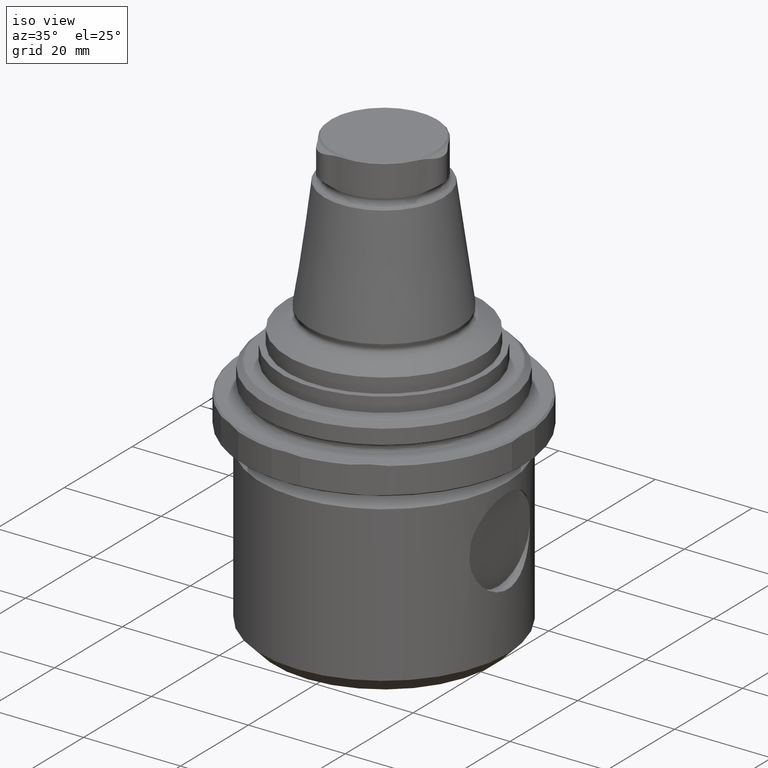
[diagram: clean part render]
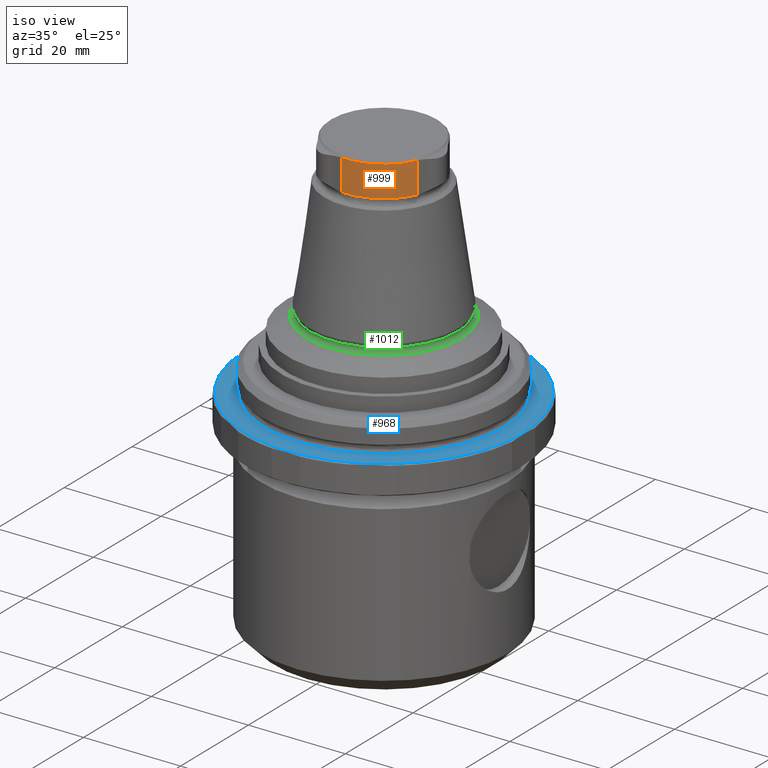
[diagram: same view with three faces highlighted in distinct colors, each labeled with its STEP entity id]
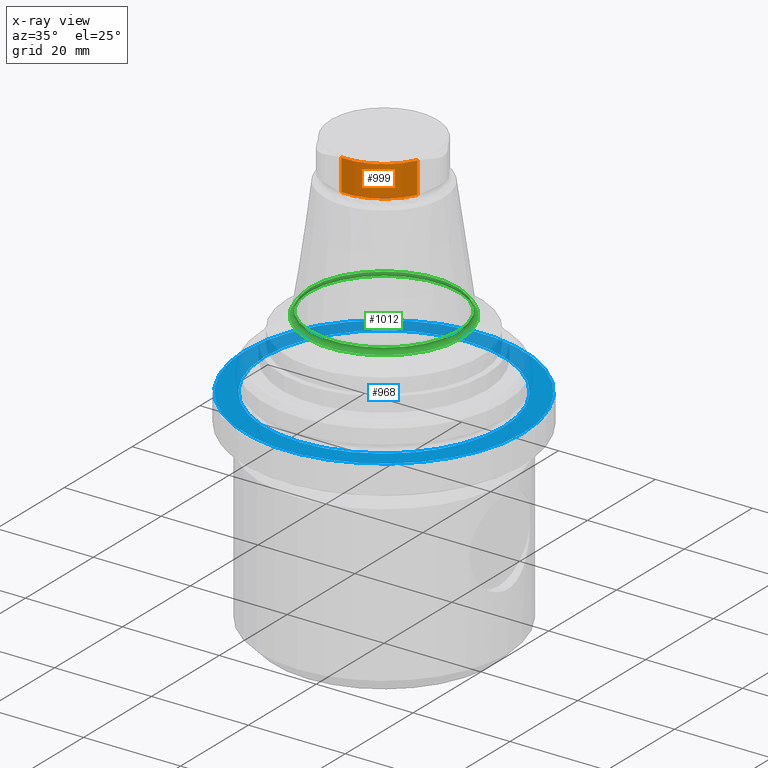
[diagram: x-ray of the same camera — body ghosted, the three highlighted faces saturated]
A machine part, iso view with three faces highlighted in distinct colors.
The next image is the same camera in x-ray (body ghosted, the three faces saturated) — at least one of them is partly hidden behind the body in this view.
Their STEP definitions:

[orange] entity #999 — the highlighted cylindrical surface (partial cylindrical patch) has radius 11.15 mm, axis along (0, 0, 1).
#45=LINE('',#1769,#75);
#46=LINE('',#1776,#76);
#75=VECTOR('',#1358,1000.);
#76=VECTOR('',#1361,1000.);
#335=ORIENTED_EDGE('',*,*,#530,.T.);
#336=ORIENTED_EDGE('',*,*,#521,.T.);
#337=ORIENTED_EDGE('',*,*,#528,.F.);
#338=ORIENTED_EDGE('',*,*,#531,.F.);
#521=EDGE_CURVE('',#629,#622,#703,.T.);
#528=EDGE_CURVE('',#639,#622,#45,.T.);
#530=EDGE_CURVE('',#640,#629,#46,.T.);
#531=EDGE_CURVE('',#640,#639,#706,.T.);
#622=VERTEX_POINT('',#1677);
#629=VERTEX_POINT('',#1707);
#639=VERTEX_POINT('',#1770);
#640=VERTEX_POINT('',#1777);
#703=CIRCLE('',#1115,11.15);
#706=CIRCLE('',#1122,11.15);
#784=EDGE_LOOP('',(#335,#336,#337,#338));
#884=FACE_BOUND('',#784,.T.);
#943=CYLINDRICAL_SURFACE('',#1121,11.15);
#999=ADVANCED_FACE('',(#884),#943,.T.);
#1115=AXIS2_PLACEMENT_3D('',#1747,#1345,#1346);
#1121=AXIS2_PLACEMENT_3D('',#1775,#1359,#1360);
#1122=AXIS2_PLACEMENT_3D('',#1778,#1362,#1363);
#1345=DIRECTION('',(-4.20111564119382E-16,-8.51929323965368E-24,-1.));
#1346=DIRECTION('',(-1.,9.77164313006873E-16,4.20111561806759E-16));
#1358=DIRECTION('',(5.47430718319515E-16,8.51929311524195E-24,1.));
#1359=DIRECTION('',(5.47430718319515E-16,8.51929311524195E-24,1.));
#1360=DIRECTION('',(1.,-9.77164313006873E-16,-5.47430716006892E-16));
#1361=DIRECTION('',(5.47430718319515E-16,8.51929311524195E-24,1.));
#1362=DIRECTION('',(-4.20111564119382E-16,-8.51929323965368E-24,-1.));
#1363=DIRECTION('',(-1.,9.77164313006873E-16,4.20111561806759E-16));
#1677=CARTESIAN_POINT('',(-1.04777822012708,-11.1006603768171,46.7));
#1707=CARTESIAN_POINT('',(10.1373429951703,-4.64292763224643,46.6999999999998));
#1747=CARTESIAN_POINT('',(-6.80964972751025E-14,-9.81645347534846E-14,46.7));
#1769=CARTESIAN_POINT('',(-1.04777822012713,-11.1006603768171,-41.9719056781409));
#1770=CARTESIAN_POINT('',(-1.04777822012709,-11.1006603768171,40.267006166777));
#1775=CARTESIAN_POINT('',(5.27168430796674E-14,-2.82060000522558E-13,-41.9719056781409));
#1776=CARTESIAN_POINT('',(10.1373429951702,-4.64292763224643,-41.9719056781409));
#1777=CARTESIAN_POINT('',(10.1373429951702,-4.64292763224643,40.2670061667779));
#1778=CARTESIAN_POINT('',(-7.00412629792113E-14,-9.81645348082892E-14,40.267006166777));

[blue] entity #968 — the highlighted planar face has unit normal (-0, -0, -1).
#128=PLANE('',#1063);
#187=ORIENTED_EDGE('',*,*,#446,.T.);
#188=ORIENTED_EDGE('',*,*,#447,.F.);
#446=EDGE_CURVE('',#581,#581,#678,.T.);
#447=EDGE_CURVE('',#582,#582,#679,.T.);
#581=VERTEX_POINT('',#1500);
#582=VERTEX_POINT('',#1503);
#678=CIRCLE('',#1062,24.65);
#679=CIRCLE('',#1064,28.7);
#748=EDGE_LOOP('',(#187));
#749=EDGE_LOOP('',(#188));
#848=FACE_BOUND('',#748,.T.);
#849=FACE_BOUND('',#749,.T.);
#968=ADVANCED_FACE('',(#848,#849),#128,.F.);
#1062=AXIS2_PLACEMENT_3D('',#1499,#1217,#1218);
#1063=AXIS2_PLACEMENT_3D('',#1501,#1219,#1220);
#1064=AXIS2_PLACEMENT_3D('',#1502,#1221,#1222);
#1217=DIRECTION('',(-5.47430718319515E-16,-4.76420379815137E-18,-1.));
#1218=DIRECTION('',(-1.,9.15933995315755E-16,5.47430716006892E-16));
#1219=DIRECTION('',(-5.47430718319515E-16,-4.76420379815137E-18,-1.));
#1220=DIRECTION('',(-1.,9.15933995315755E-16,5.47430716006892E-16));
#1221=DIRECTION('',(-5.47430718319515E-16,-4.76420379815137E-18,-1.));
#1222=DIRECTION('',(-1.,9.15933995315755E-16,5.47430716006892E-16));
#1499=CARTESIAN_POINT('',(-9.43090876781778E-14,-9.81645351598202E-14,-0.995929214352105));
#1500=CARTESIAN_POINT('',(-24.6500000000001,-7.55867621752869E-14,-0.995929214352092));
#1501=CARTESIAN_POINT('',(-24.6500000000001,-7.55867621752869E-14,-0.995929214352092));
#1502=CARTESIAN_POINT('',(-9.43090876781778E-14,-9.81645351598202E-14,-0.995929214352105));
#1503=CARTESIAN_POINT('',(-28.7000000000001,-7.18772294942581E-14,-0.99592921435209));

[green] entity #1012 — the highlighted toroidal blend (fillet) surface has major radius 16.015 mm and minor (blend) radius 0.8 mm.
#164=TOROIDAL_SURFACE('',#1143,16.015,0.8);
#394=ORIENTED_EDGE('',*,*,#550,.T.);
#395=ORIENTED_EDGE('',*,*,#551,.F.);
#550=EDGE_CURVE('',#651,#651,#714,.T.);
#551=EDGE_CURVE('',#652,#652,#715,.T.);
#651=VERTEX_POINT('',#1844);
#652=VERTEX_POINT('',#1847);
#714=CIRCLE('',#1142,15.2632459033713);
#715=CIRCLE('',#1144,16.0162831425916);
#801=EDGE_LOOP('',(#394));
#802=EDGE_LOOP('',(#395));
#901=FACE_BOUND('',#801,.T.);
#902=FACE_BOUND('',#802,.T.);
#1012=ADVANCED_FACE('',(#901,#902),#164,.F.);
#1142=AXIS2_PLACEMENT_3D('',#1843,#1405,#1406);
#1143=AXIS2_PLACEMENT_3D('',#1845,#1407,#1408);
#1144=AXIS2_PLACEMENT_3D('',#1846,#1409,#1410);
#1405=DIRECTION('',(-4.20111564119382E-16,-8.51929323965368E-24,-1.));
#1406=DIRECTION('',(-1.,9.77164313006873E-16,4.20111561806759E-16));
#1407=DIRECTION('',(-4.20111564119382E-16,-8.51929323965368E-24,-1.));
#1408=DIRECTION('',(-1.,9.77164313006873E-16,4.20111561806759E-16));
#1409=DIRECTION('',(-4.20111564119382E-16,-8.51929323965368E-24,-1.));
#1410=DIRECTION('',(-1.,9.77164313006873E-16,4.20111561806759E-16));
#1843=CARTESIAN_POINT('',(-8.16754752196798E-14,-9.81645350288479E-14,14.3776858712735));
#1844=CARTESIAN_POINT('',(-15.2632459033714,-8.32498358314252E-14,14.3776858712735));
#1845=CARTESIAN_POINT('',(-8.25734374429248E-14,-9.81645350311789E-14,14.1040697566129));
#1846=CARTESIAN_POINT('',(-8.21265133325642E-14,-9.81645350379943E-14,13.3040707856479));
#1847=CARTESIAN_POINT('',(-16.0162831425917,-8.25139947240403E-14,13.3040707856479));